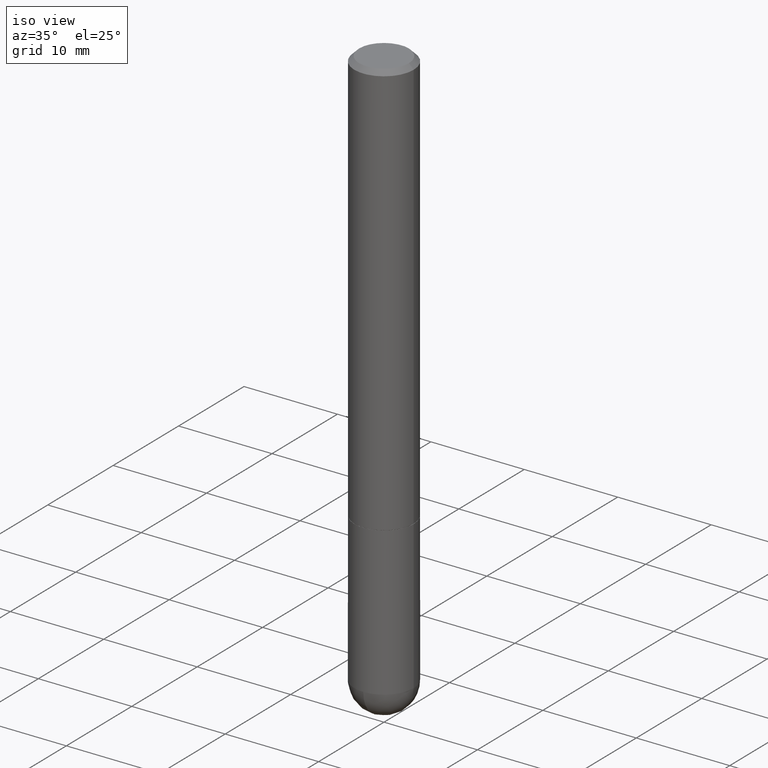
[diagram: clean part render]
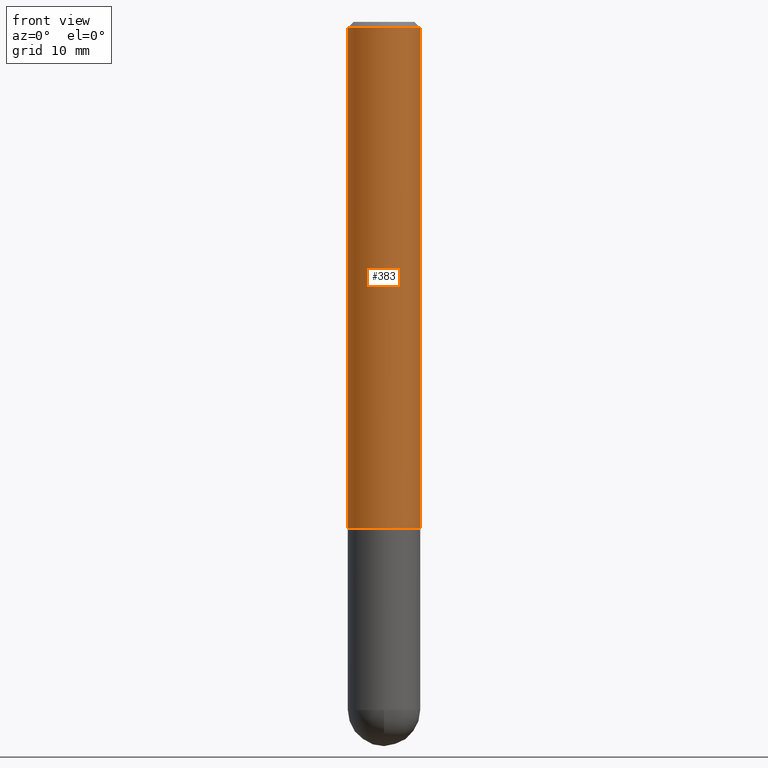
[diagram: tour spotlight — one face highlighted and labeled with its STEP entity id]
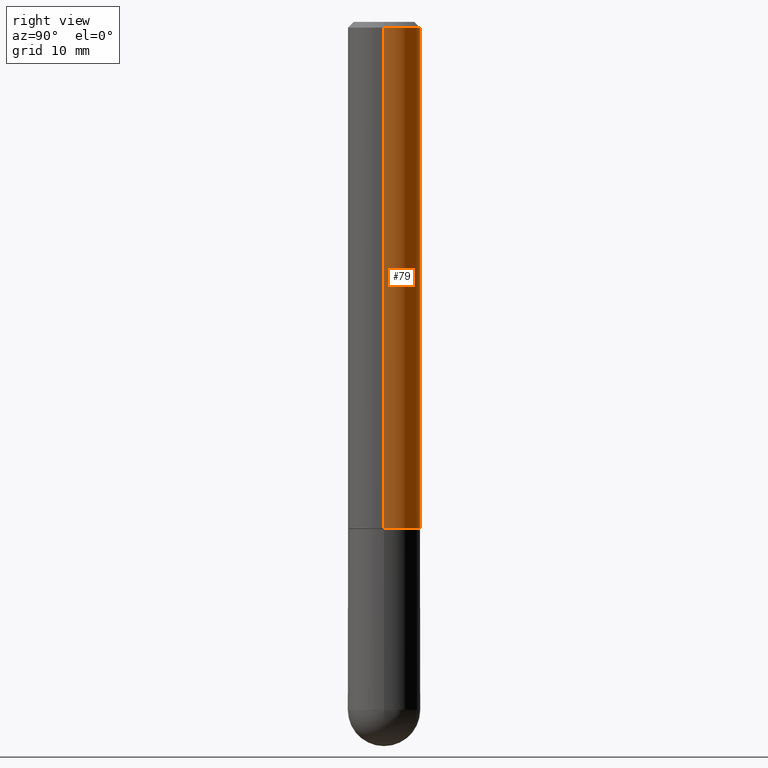
[diagram: tour spotlight — one face highlighted and labeled with its STEP entity id]
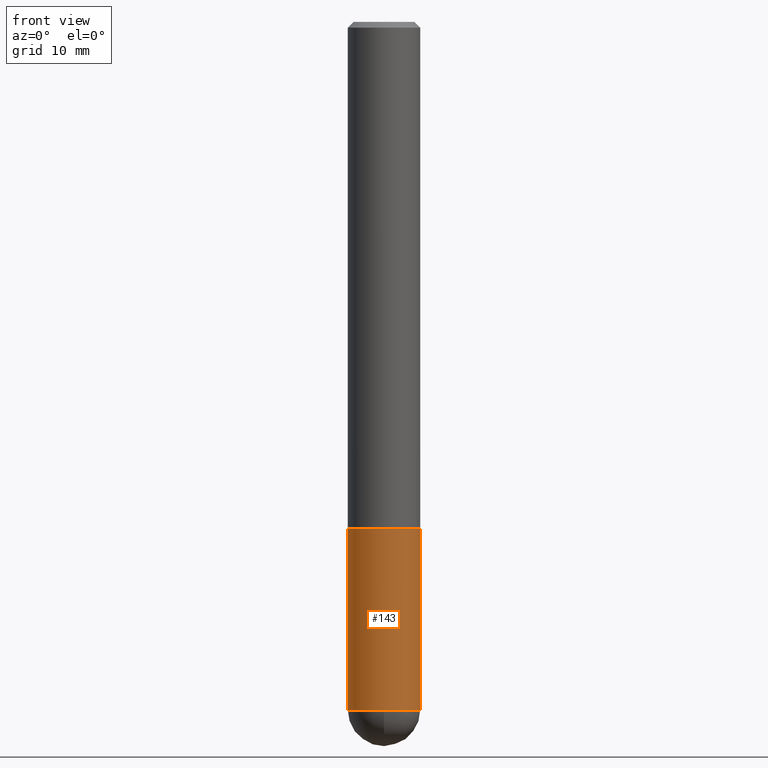
[diagram: tour spotlight — one face highlighted and labeled with its STEP entity id]
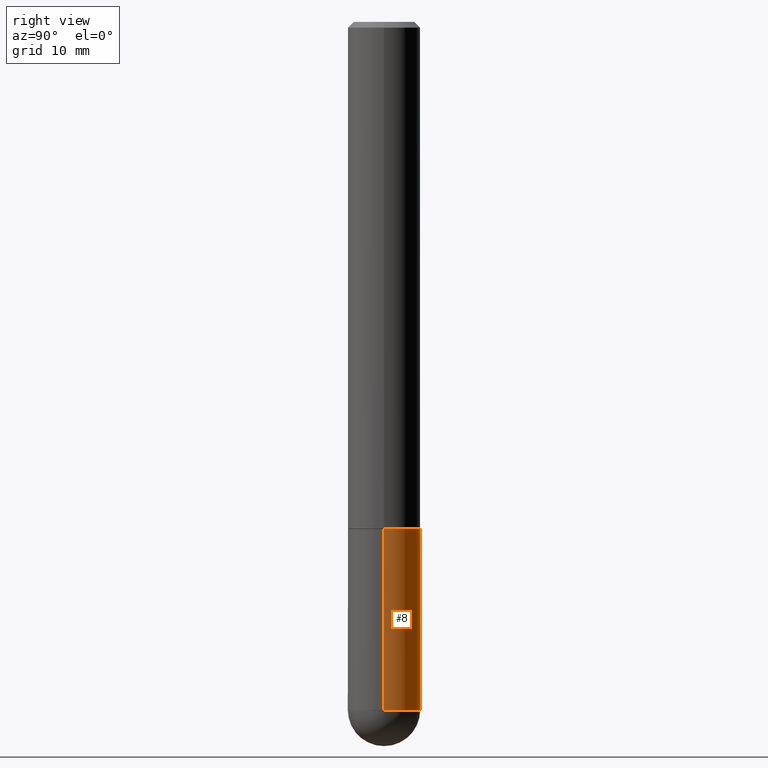
[diagram: tour spotlight — one face highlighted and labeled with its STEP entity id]
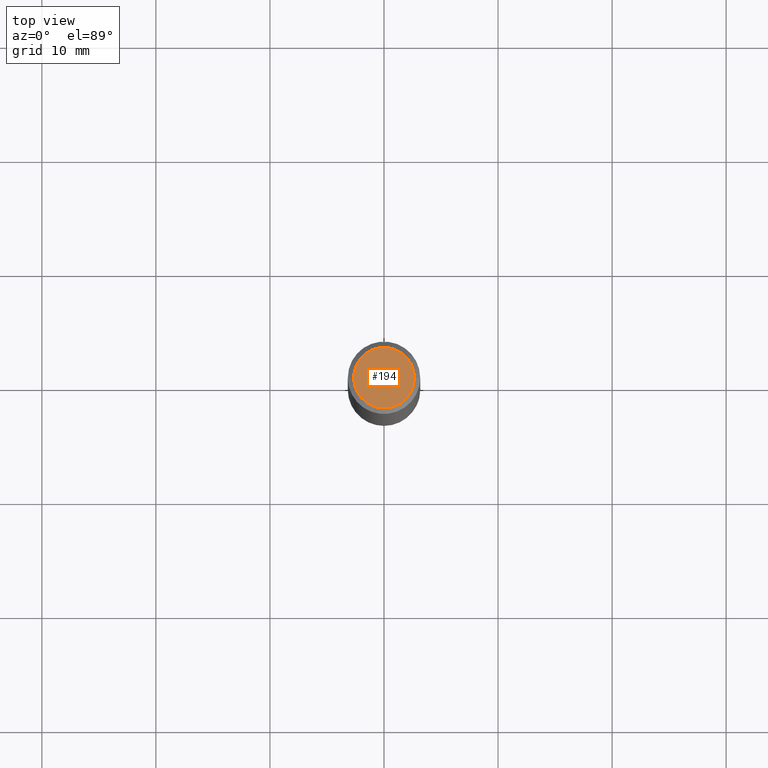
[diagram: tour spotlight — one face highlighted and labeled with its STEP entity id]
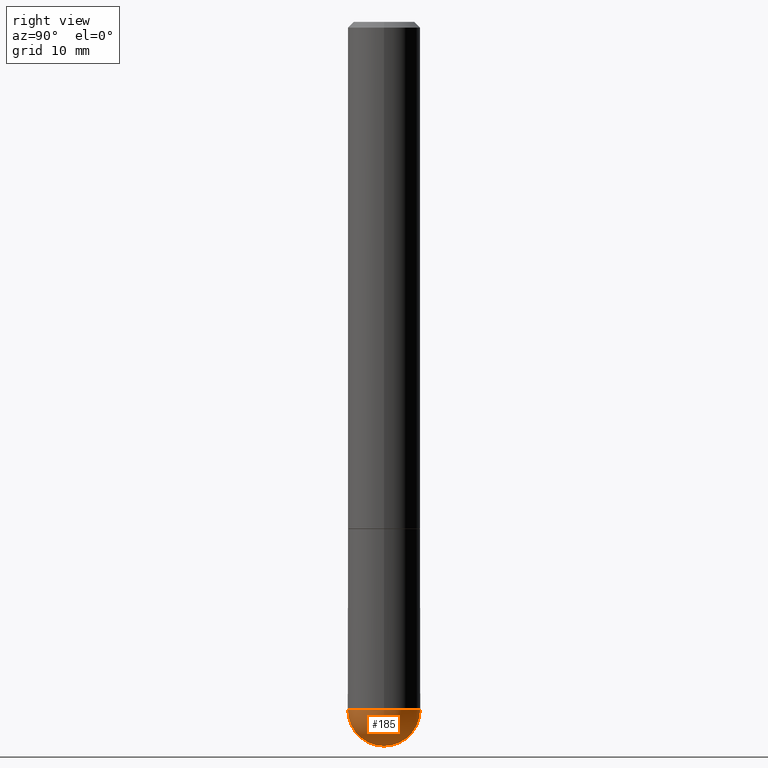
[diagram: tour spotlight — one face highlighted and labeled with its STEP entity id]
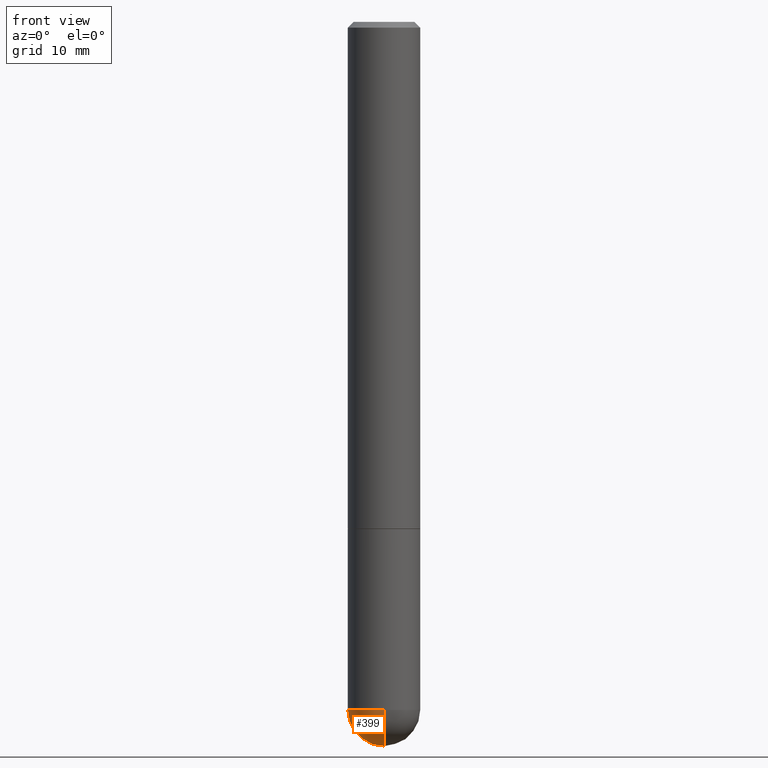
[diagram: tour spotlight — one face highlighted and labeled with its STEP entity id]
A machine part: a face-by-face anatomy tour. The part has 13 B-rep faces; the first image is the clean iso view, then the 7 largest visible faces are spotlighted one at a time (largest first), each with its STEP entity span.

Face 1 — front view, entity #383. In plain terms, the highlighted cylindrical surface (edge-blend (fillet) strip) has radius 3.175 mm, axis along (-0, 0, 1).
Definition (entity closure, byte-faithful):
#4 = LINE ( 'NONE', #391, #344 ) ;
#11 = DIRECTION ( 'NONE',  ( 1.000000000000000000, -6.982962677686264344E-15, 0.000000000000000000 ) ) ;
#64 = AXIS2_PLACEMENT_3D ( 'NONE', #357, #240, #82 ) ;
#80 = CYLINDRICAL_SURFACE ( 'NONE', #64, 0.1250000000000001388 ) ;
#82 = DIRECTION ( 'NONE',  ( 1.000000000000000000, -6.982962677686266711E-15, 4.876176775795935793E-29 ) ) ;
#94 = VECTOR ( 'NONE', #278, 39.37007874015748143 ) ;
#156 = DIRECTION ( 'NONE',  ( -2.445468806185136597E-29, 3.491481338843145583E-15, 1.000000000000000000 ) ) ;
#162 = ORIENTED_EDGE ( 'NONE', *, *, #283, .F. ) ;
#167 = EDGE_CURVE ( 'NONE', #211, #398, #169, .T. ) ;
#169 = LINE ( 'NONE', #309, #94 ) ;
#170 = EDGE_CURVE ( 'NONE', #234, #249, #4, .T. ) ;
#197 = AXIS2_PLACEMENT_3D ( 'NONE', #334, #264, #342 ) ;
#211 = VERTEX_POINT ( 'NONE', #233 ) ;
#221 = ORIENTED_EDGE ( 'NONE', *, *, #170, .F. ) ;
#233 = CARTESIAN_POINT ( 'NONE',  ( 0.1250000000000002498, -6.979471196347446580E-15, -1.749000000000000110 ) ) ;
#234 = VERTEX_POINT ( 'NONE', #287 ) ;
#237 = DIRECTION ( 'NONE',  ( -2.445468806185136877E-29, 3.491481338843145188E-15, 1.000000000000000000 ) ) ;
#240 = DIRECTION ( 'NONE',  ( -2.445468806185136597E-29, 3.491481338843145583E-15, 1.000000000000000000 ) ) ;
#244 = FACE_OUTER_BOUND ( 'NONE', #276, .T. ) ;
#249 = VERTEX_POINT ( 'NONE', #300 ) ;
#261 = CARTESIAN_POINT ( 'NONE',  ( 4.277124942017804562E-29, -6.106600861636661664E-15, -1.749000000000000110 ) ) ;
#264 = DIRECTION ( 'NONE',  ( -2.445468806185136597E-29, 3.491481338843145583E-15, 1.000000000000000000 ) ) ;
#276 = EDGE_LOOP ( 'NONE', ( #221, #285, #358, #162 ) ) ;
#278 = DIRECTION ( 'NONE',  ( -2.445468806185136877E-29, 3.491481338843145188E-15, 1.000000000000000000 ) ) ;
#283 = EDGE_CURVE ( 'NONE', #249, #398, #403, .T. ) ;
#285 = ORIENTED_EDGE ( 'NONE', *, *, #302, .T. ) ;
#287 = CARTESIAN_POINT ( 'NONE',  ( -0.1250000000000002498, -2.200036824506632516E-15, -1.749000000000000110 ) ) ;
#300 = CARTESIAN_POINT ( 'NONE',  ( -0.1250000000000000278, 8.030407079339204351E-16, -0.02000000000000007674 ) ) ;
#302 = EDGE_CURVE ( 'NONE', #234, #211, #359, .T. ) ;
#309 = CARTESIAN_POINT ( 'NONE',  ( 0.1250000000000001388, -8.728703347107843249E-16, 6.095220969744926748E-30 ) ) ;
#312 = AXIS2_PLACEMENT_3D ( 'NONE', #261, #156, #11 ) ;
#313 = CARTESIAN_POINT ( 'NONE',  ( 0.1250000000000000278, -9.273918764983049407E-16, -0.02000000000000007674 ) ) ;
#334 = CARTESIAN_POINT ( 'NONE',  ( 4.890937612370292426E-31, -6.982962677686317493E-17, -0.02000000000000007674 ) ) ;
#342 = DIRECTION ( 'NONE',  ( 1.000000000000000000, -6.982962677686267499E-15, 0.000000000000000000 ) ) ;
#344 = VECTOR ( 'NONE', #237, 39.37007874015748143 ) ;
#357 = CARTESIAN_POINT ( 'NONE',  ( 0.000000000000000000, 0.000000000000000000, 0.000000000000000000 ) ) ;
#358 = ORIENTED_EDGE ( 'NONE', *, *, #167, .T. ) ;
#359 = CIRCLE ( 'NONE', #312, 0.1250000000000002498 ) ;
#383 = ADVANCED_FACE ( 'NONE', ( #244 ), #80, .T. ) ;
#391 = CARTESIAN_POINT ( 'NONE',  ( -0.1250000000000001388, 8.881784197001262184E-16, -6.148668862818638533E-30 ) ) ;
#398 = VERTEX_POINT ( 'NONE', #313 ) ;
#403 = CIRCLE ( 'NONE', #197, 0.1250000000000000278 ) ;

Face 2 — right view, entity #79. In plain terms, the highlighted cylindrical surface (edge-blend (fillet) strip) has radius 3.175 mm, axis along (-0, 0, 1).
Definition (entity closure, byte-faithful):
#4 = LINE ( 'NONE', #391, #344 ) ;
#16 = EDGE_CURVE ( 'NONE', #398, #249, #200, .T. ) ;
#28 = AXIS2_PLACEMENT_3D ( 'NONE', #43, #333, #122 ) ;
#32 = EDGE_CURVE ( 'NONE', #211, #234, #395, .T. ) ;
#38 = DIRECTION ( 'NONE',  ( 1.000000000000000000, -6.982962677686267499E-15, 0.000000000000000000 ) ) ;
#43 = CARTESIAN_POINT ( 'NONE',  ( 0.000000000000000000, 0.000000000000000000, 0.000000000000000000 ) ) ;
#59 = EDGE_LOOP ( 'NONE', ( #256, #269, #250, #284 ) ) ;
#67 = DIRECTION ( 'NONE',  ( -2.445468806185136597E-29, 3.491481338843145583E-15, 1.000000000000000000 ) ) ;
#79 = ADVANCED_FACE ( 'NONE', ( #295 ), #220, .T. ) ;
#94 = VECTOR ( 'NONE', #278, 39.37007874015748143 ) ;
#122 = DIRECTION ( 'NONE',  ( 1.000000000000000000, -6.982962677686266711E-15, 4.876176775795935793E-29 ) ) ;
#159 = DIRECTION ( 'NONE',  ( -2.445468806185136597E-29, 3.491481338843145583E-15, 1.000000000000000000 ) ) ;
#167 = EDGE_CURVE ( 'NONE', #211, #398, #169, .T. ) ;
#168 = AXIS2_PLACEMENT_3D ( 'NONE', #265, #159, #407 ) ;
#169 = LINE ( 'NONE', #309, #94 ) ;
#170 = EDGE_CURVE ( 'NONE', #234, #249, #4, .T. ) ;
#200 = CIRCLE ( 'NONE', #368, 0.1250000000000000278 ) ;
#211 = VERTEX_POINT ( 'NONE', #233 ) ;
#220 = CYLINDRICAL_SURFACE ( 'NONE', #28, 0.1250000000000001388 ) ;
#233 = CARTESIAN_POINT ( 'NONE',  ( 0.1250000000000002498, -6.979471196347446580E-15, -1.749000000000000110 ) ) ;
#234 = VERTEX_POINT ( 'NONE', #287 ) ;
#237 = DIRECTION ( 'NONE',  ( -2.445468806185136877E-29, 3.491481338843145188E-15, 1.000000000000000000 ) ) ;
#249 = VERTEX_POINT ( 'NONE', #300 ) ;
#250 = ORIENTED_EDGE ( 'NONE', *, *, #16, .F. ) ;
#256 = ORIENTED_EDGE ( 'NONE', *, *, #32, .T. ) ;
#265 = CARTESIAN_POINT ( 'NONE',  ( 4.277124942017804562E-29, -6.106600861636661664E-15, -1.749000000000000110 ) ) ;
#269 = ORIENTED_EDGE ( 'NONE', *, *, #170, .T. ) ;
#278 = DIRECTION ( 'NONE',  ( -2.445468806185136877E-29, 3.491481338843145188E-15, 1.000000000000000000 ) ) ;
#284 = ORIENTED_EDGE ( 'NONE', *, *, #167, .F. ) ;
#287 = CARTESIAN_POINT ( 'NONE',  ( -0.1250000000000002498, -2.200036824506632516E-15, -1.749000000000000110 ) ) ;
#295 = FACE_OUTER_BOUND ( 'NONE', #59, .T. ) ;
#300 = CARTESIAN_POINT ( 'NONE',  ( -0.1250000000000000278, 8.030407079339204351E-16, -0.02000000000000007674 ) ) ;
#309 = CARTESIAN_POINT ( 'NONE',  ( 0.1250000000000001388, -8.728703347107843249E-16, 6.095220969744926748E-30 ) ) ;
#313 = CARTESIAN_POINT ( 'NONE',  ( 0.1250000000000000278, -9.273918764983049407E-16, -0.02000000000000007674 ) ) ;
#333 = DIRECTION ( 'NONE',  ( -2.445468806185136597E-29, 3.491481338843145583E-15, 1.000000000000000000 ) ) ;
#344 = VECTOR ( 'NONE', #237, 39.37007874015748143 ) ;
#368 = AXIS2_PLACEMENT_3D ( 'NONE', #409, #67, #38 ) ;
#391 = CARTESIAN_POINT ( 'NONE',  ( -0.1250000000000001388, 8.881784197001262184E-16, -6.148668862818638533E-30 ) ) ;
#395 = CIRCLE ( 'NONE', #168, 0.1250000000000002498 ) ;
#398 = VERTEX_POINT ( 'NONE', #313 ) ;
#407 = DIRECTION ( 'NONE',  ( 1.000000000000000000, -6.982962677686264344E-15, 0.000000000000000000 ) ) ;
#409 = CARTESIAN_POINT ( 'NONE',  ( 4.890937612370292426E-31, -6.982962677686317493E-17, -0.02000000000000007674 ) ) ;

Face 3 — front view, entity #143. In plain terms, the highlighted cylindrical surface (edge-blend (fillet) strip) has radius 3.175 mm, axis along (-0, 0, 1).
Definition (entity closure, byte-faithful):
#1 = VERTEX_POINT ( 'NONE', #9 ) ;
#9 = CARTESIAN_POINT ( 'NONE',  ( 0.1250000000000000000, -6.982962677686288010E-15, -1.750000000000000222 ) ) ;
#21 = DIRECTION ( 'NONE',  ( -2.445468806185136597E-29, 3.491481338843145583E-15, 1.000000000000000000 ) ) ;
#26 = EDGE_CURVE ( 'NONE', #394, #356, #148, .T. ) ;
#30 = VECTOR ( 'NONE', #177, 39.37007874015748143 ) ;
#46 = CARTESIAN_POINT ( 'NONE',  ( 0.000000000000000000, 0.000000000000000000, 0.000000000000000000 ) ) ;
#48 = DIRECTION ( 'NONE',  ( -2.445468806185136597E-29, 3.491481338843145583E-15, 1.000000000000000000 ) ) ;
#50 = AXIS2_PLACEMENT_3D ( 'NONE', #46, #346, #53 ) ;
#53 = DIRECTION ( 'NONE',  ( 1.000000000000000000, -6.982962677686266711E-15, 4.876176775795935793E-29 ) ) ;
#63 = ORIENTED_EDGE ( 'NONE', *, *, #340, .T. ) ;
#85 = EDGE_CURVE ( 'NONE', #394, #146, #260, .T. ) ;
#96 = DIRECTION ( 'NONE',  ( -2.445468806185136877E-29, 3.491481338843145188E-15, 1.000000000000000000 ) ) ;
#100 = CIRCLE ( 'NONE', #350, 0.1250000000000000000 ) ;
#107 = AXIS2_PLACEMENT_3D ( 'NONE', #196, #21, #378 ) ;
#114 = ORIENTED_EDGE ( 'NONE', *, *, #85, .F. ) ;
#127 = CARTESIAN_POINT ( 'NONE',  ( 5.807988414689700538E-29, -8.292268179752471696E-15, -2.375000000000000000 ) ) ;
#131 = DIRECTION ( 'NONE',  ( 1.000000000000000000, -6.982962677686270655E-15, 0.000000000000000000 ) ) ;
#136 = ORIENTED_EDGE ( 'NONE', *, *, #26, .T. ) ;
#137 = CARTESIAN_POINT ( 'NONE',  ( -0.1250000000000000000, -6.313001841663863345E-15, -1.750000000000000222 ) ) ;
#141 = DIRECTION ( 'NONE',  ( 1.000000000000000000, -6.982962677686270655E-15, 0.000000000000000000 ) ) ;
#143 = ADVANCED_FACE ( 'NONE', ( #348 ), #311, .T. ) ;
#146 = VERTEX_POINT ( 'NONE', #137 ) ;
#148 = CIRCLE ( 'NONE', #257, 0.1250000000000000000 ) ;
#176 = ORIENTED_EDGE ( 'NONE', *, *, #178, .T. ) ;
#177 = DIRECTION ( 'NONE',  ( -2.445468806185136877E-29, 3.491481338843145188E-15, 1.000000000000000000 ) ) ;
#178 = EDGE_CURVE ( 'NONE', #356, #393, #100, .T. ) ;
#188 = CARTESIAN_POINT ( 'NONE',  ( -0.1250000000000000000, 8.881784197001252323E-16, -6.148668862818632227E-30 ) ) ;
#193 = ORIENTED_EDGE ( 'NONE', *, *, #277, .F. ) ;
#196 = CARTESIAN_POINT ( 'NONE',  ( 4.279570410823989044E-29, -6.110092342975505460E-15, -1.750000000000000222 ) ) ;
#214 = VECTOR ( 'NONE', #96, 39.37007874015748143 ) ;
#227 = CARTESIAN_POINT ( 'NONE',  ( 0.1250000000000000000, -8.728703347107833388E-16, 6.095220969744919741E-30 ) ) ;
#236 = CARTESIAN_POINT ( 'NONE',  ( 5.807988414689700538E-29, -8.292268179752471696E-15, -2.375000000000000000 ) ) ;
#257 = AXIS2_PLACEMENT_3D ( 'NONE', #127, #263, #131 ) ;
#260 = LINE ( 'NONE', #188, #214 ) ;
#263 = DIRECTION ( 'NONE',  ( -2.445468806185136597E-29, 3.491481338843145583E-15, 1.000000000000000000 ) ) ;
#272 = CIRCLE ( 'NONE', #107, 0.1250000000000000000 ) ;
#277 = EDGE_CURVE ( 'NONE', #146, #1, #272, .T. ) ;
#311 = CYLINDRICAL_SURFACE ( 'NONE', #50, 0.1250000000000000000 ) ;
#318 = CARTESIAN_POINT ( 'NONE',  ( -0.1250000000000000000, -6.313001841663864134E-15, -2.375000000000000000 ) ) ;
#332 = EDGE_LOOP ( 'NONE', ( #114, #136, #176, #63, #193 ) ) ;
#340 = EDGE_CURVE ( 'NONE', #393, #1, #401, .T. ) ;
#346 = DIRECTION ( 'NONE',  ( -2.445468806185136597E-29, 3.491481338843145583E-15, 1.000000000000000000 ) ) ;
#348 = FACE_OUTER_BOUND ( 'NONE', #332, .T. ) ;
#350 = AXIS2_PLACEMENT_3D ( 'NONE', #236, #48, #141 ) ;
#353 = CARTESIAN_POINT ( 'NONE',  ( 0.1250000000000000000, -8.074050596074771916E-15, -2.375000000000000000 ) ) ;
#356 = VERTEX_POINT ( 'NONE', #360 ) ;
#360 = CARTESIAN_POINT ( 'NONE',  ( -8.881784197000694204E-16, -0.1250000000000086320, -2.374999999999999556 ) ) ;
#378 = DIRECTION ( 'NONE',  ( 1.000000000000000000, -6.982962677686262766E-15, 0.000000000000000000 ) ) ;
#393 = VERTEX_POINT ( 'NONE', #353 ) ;
#394 = VERTEX_POINT ( 'NONE', #318 ) ;
#401 = LINE ( 'NONE', #227, #30 ) ;

Face 4 — right view, entity #8. In plain terms, the highlighted cylindrical surface (edge-blend (fillet) strip) has radius 3.175 mm, axis along (-0, 0, 1).
Definition (entity closure, byte-faithful):
#1 = VERTEX_POINT ( 'NONE', #9 ) ;
#7 = ORIENTED_EDGE ( 'NONE', *, *, #126, .T. ) ;
#8 = ADVANCED_FACE ( 'NONE', ( #128 ), #335, .T. ) ;
#9 = CARTESIAN_POINT ( 'NONE',  ( 0.1250000000000000000, -6.982962677686288010E-15, -1.750000000000000222 ) ) ;
#12 = ORIENTED_EDGE ( 'NONE', *, *, #340, .F. ) ;
#30 = VECTOR ( 'NONE', #177, 39.37007874015748143 ) ;
#39 = CIRCLE ( 'NONE', #271, 0.1250000000000000000 ) ;
#47 = DIRECTION ( 'NONE',  ( -2.445468806185136597E-29, 3.491481338843145583E-15, 1.000000000000000000 ) ) ;
#51 = AXIS2_PLACEMENT_3D ( 'NONE', #52, #47, #308 ) ;
#52 = CARTESIAN_POINT ( 'NONE',  ( 5.807988414689700538E-29, -8.292268179752471696E-15, -2.375000000000000000 ) ) ;
#75 = DIRECTION ( 'NONE',  ( -2.445468806185136597E-29, 3.491481338843145583E-15, 1.000000000000000000 ) ) ;
#85 = EDGE_CURVE ( 'NONE', #394, #146, #260, .T. ) ;
#96 = DIRECTION ( 'NONE',  ( -2.445468806185136877E-29, 3.491481338843145188E-15, 1.000000000000000000 ) ) ;
#126 = EDGE_CURVE ( 'NONE', #393, #142, #39, .T. ) ;
#128 = FACE_OUTER_BOUND ( 'NONE', #144, .T. ) ;
#134 = AXIS2_PLACEMENT_3D ( 'NONE', #299, #337, #166 ) ;
#137 = CARTESIAN_POINT ( 'NONE',  ( -0.1250000000000000000, -6.313001841663863345E-15, -1.750000000000000222 ) ) ;
#142 = VERTEX_POINT ( 'NONE', #387 ) ;
#144 = EDGE_LOOP ( 'NONE', ( #155, #281, #243, #12, #7 ) ) ;
#146 = VERTEX_POINT ( 'NONE', #137 ) ;
#155 = ORIENTED_EDGE ( 'NONE', *, *, #209, .T. ) ;
#166 = DIRECTION ( 'NONE',  ( 1.000000000000000000, -6.982962677686266711E-15, 4.876176775795935793E-29 ) ) ;
#177 = DIRECTION ( 'NONE',  ( -2.445468806185136877E-29, 3.491481338843145188E-15, 1.000000000000000000 ) ) ;
#182 = AXIS2_PLACEMENT_3D ( 'NONE', #320, #326, #384 ) ;
#188 = CARTESIAN_POINT ( 'NONE',  ( -0.1250000000000000000, 8.881784197001252323E-16, -6.148668862818632227E-30 ) ) ;
#199 = CARTESIAN_POINT ( 'NONE',  ( 5.807988414689700538E-29, -8.292268179752471696E-15, -2.375000000000000000 ) ) ;
#209 = EDGE_CURVE ( 'NONE', #142, #394, #248, .T. ) ;
#214 = VECTOR ( 'NONE', #96, 39.37007874015748143 ) ;
#227 = CARTESIAN_POINT ( 'NONE',  ( 0.1250000000000000000, -8.728703347107833388E-16, 6.095220969744919741E-30 ) ) ;
#243 = ORIENTED_EDGE ( 'NONE', *, *, #364, .F. ) ;
#248 = CIRCLE ( 'NONE', #51, 0.1250000000000000000 ) ;
#260 = LINE ( 'NONE', #188, #214 ) ;
#271 = AXIS2_PLACEMENT_3D ( 'NONE', #199, #75, #351 ) ;
#281 = ORIENTED_EDGE ( 'NONE', *, *, #85, .T. ) ;
#299 = CARTESIAN_POINT ( 'NONE',  ( 0.000000000000000000, 0.000000000000000000, 0.000000000000000000 ) ) ;
#308 = DIRECTION ( 'NONE',  ( 1.000000000000000000, -6.982962677686270655E-15, 0.000000000000000000 ) ) ;
#318 = CARTESIAN_POINT ( 'NONE',  ( -0.1250000000000000000, -6.313001841663864134E-15, -2.375000000000000000 ) ) ;
#320 = CARTESIAN_POINT ( 'NONE',  ( 4.279570410823989044E-29, -6.110092342975505460E-15, -1.750000000000000222 ) ) ;
#326 = DIRECTION ( 'NONE',  ( -2.445468806185136597E-29, 3.491481338843145583E-15, 1.000000000000000000 ) ) ;
#335 = CYLINDRICAL_SURFACE ( 'NONE', #134, 0.1250000000000000000 ) ;
#337 = DIRECTION ( 'NONE',  ( -2.445468806185136597E-29, 3.491481338843145583E-15, 1.000000000000000000 ) ) ;
#340 = EDGE_CURVE ( 'NONE', #393, #1, #401, .T. ) ;
#351 = DIRECTION ( 'NONE',  ( 1.000000000000000000, -6.982962677686270655E-15, 0.000000000000000000 ) ) ;
#353 = CARTESIAN_POINT ( 'NONE',  ( 0.1250000000000000000, -8.074050596074771916E-15, -2.375000000000000000 ) ) ;
#364 = EDGE_CURVE ( 'NONE', #1, #146, #396, .T. ) ;
#384 = DIRECTION ( 'NONE',  ( 1.000000000000000000, -6.982962677686262766E-15, 0.000000000000000000 ) ) ;
#387 = CARTESIAN_POINT ( 'NONE',  ( 8.728703347108403340E-16, 0.1249999999999915623, -2.375000000000000888 ) ) ;
#393 = VERTEX_POINT ( 'NONE', #353 ) ;
#394 = VERTEX_POINT ( 'NONE', #318 ) ;
#396 = CIRCLE ( 'NONE', #182, 0.1250000000000000000 ) ;
#401 = LINE ( 'NONE', #227, #30 ) ;

Face 5 — top view, entity #194. In plain terms, the highlighted planar face has unit normal (0, -0, -1).
Definition (entity closure, byte-faithful):
#3 = EDGE_CURVE ( 'NONE', #33, #204, #329, .T. ) ;
#31 = ORIENTED_EDGE ( 'NONE', *, *, #3, .T. ) ;
#33 = VERTEX_POINT ( 'NONE', #102 ) ;
#42 = DIRECTION ( 'NONE',  ( 2.438088387897960049E-29, -3.491481338843145188E-15, -1.000000000000000000 ) ) ;
#70 = PLANE ( 'NONE',  #381 ) ;
#77 = CARTESIAN_POINT ( 'NONE',  ( 0.1050000000000001765, -8.238720831321587491E-16, -1.835460370743122338E-16 ) ) ;
#81 = CIRCLE ( 'NONE', #389, 0.1050000000000001765 ) ;
#84 = ORIENTED_EDGE ( 'NONE', *, *, #349, .T. ) ;
#99 = FACE_OUTER_BOUND ( 'NONE', #175, .T. ) ;
#102 = CARTESIAN_POINT ( 'NONE',  ( -0.1050000000000001765, 7.681258945454895748E-16, -1.835460370743229328E-16 ) ) ;
#120 = DIRECTION ( 'NONE',  ( -2.445468806185136597E-29, 3.491481338843145583E-15, 1.000000000000000000 ) ) ;
#133 = DIRECTION ( 'NONE',  ( -1.000000000000000000, 6.982962677686265922E-15, -4.876176775795935793E-29 ) ) ;
#152 = DIRECTION ( 'NONE',  ( 1.000000000000000000, -6.982962677686266711E-15, 4.881622206245854183E-29 ) ) ;
#163 = CARTESIAN_POINT ( 'NONE',  ( 4.488561081641444621E-45, -6.408475632635922878E-31, -1.835460370743176819E-16 ) ) ;
#175 = EDGE_LOOP ( 'NONE', ( #31, #84 ) ) ;
#192 = CARTESIAN_POINT ( 'NONE',  ( 7.332110811570591090E-16, 0.1050000000000001765, -4.583785591156897143E-16 ) ) ;
#194 = ADVANCED_FACE ( 'NONE', ( #99 ), #70, .F. ) ;
#204 = VERTEX_POINT ( 'NONE', #77 ) ;
#254 = DIRECTION ( 'NONE',  ( -2.445468806185136597E-29, 3.491481338843145583E-15, 1.000000000000000000 ) ) ;
#306 = AXIS2_PLACEMENT_3D ( 'NONE', #163, #120, #400 ) ;
#329 = CIRCLE ( 'NONE', #306, 0.1050000000000001765 ) ;
#349 = EDGE_CURVE ( 'NONE', #204, #33, #81, .T. ) ;
#367 = CARTESIAN_POINT ( 'NONE',  ( 4.488561081641444621E-45, -6.408475632635922878E-31, -1.835460370743176819E-16 ) ) ;
#381 = AXIS2_PLACEMENT_3D ( 'NONE', #192, #42, #133 ) ;
#389 = AXIS2_PLACEMENT_3D ( 'NONE', #367, #254, #152 ) ;
#400 = DIRECTION ( 'NONE',  ( 1.000000000000000000, -6.982962677686266711E-15, 4.881622206245854183E-29 ) ) ;

Face 6 — right view, entity #185. In plain terms, the highlighted spherical surface has radius 3.175 mm.
Definition (entity closure, byte-faithful):
#34 = ORIENTED_EDGE ( 'NONE', *, *, #178, .F. ) ;
#39 = CIRCLE ( 'NONE', #271, 0.1250000000000000000 ) ;
#48 = DIRECTION ( 'NONE',  ( -2.445468806185136597E-29, 3.491481338843145583E-15, 1.000000000000000000 ) ) ;
#75 = DIRECTION ( 'NONE',  ( -2.445468806185136597E-29, 3.491481338843145583E-15, 1.000000000000000000 ) ) ;
#86 = EDGE_LOOP ( 'NONE', ( #361, #288, #179, #34 ) ) ;
#97 = DIRECTION ( 'NONE',  ( 1.000000000000000000, -6.982962677686265922E-15, 4.883557194083112340E-29 ) ) ;
#100 = CIRCLE ( 'NONE', #350, 0.1250000000000000000 ) ;
#116 = VERTEX_POINT ( 'NONE', #229 ) ;
#119 = EDGE_CURVE ( 'NONE', #116, #356, #297, .T. ) ;
#123 = AXIS2_PLACEMENT_3D ( 'NONE', #290, #129, #376 ) ;
#126 = EDGE_CURVE ( 'NONE', #393, #142, #39, .T. ) ;
#129 = DIRECTION ( 'NONE',  ( -1.000000000000000000, 6.982962677686265922E-15, -4.883557194083112901E-29 ) ) ;
#138 = AXIS2_PLACEMENT_3D ( 'NONE', #339, #305, #273 ) ;
#141 = DIRECTION ( 'NONE',  ( 1.000000000000000000, -6.982962677686270655E-15, 0.000000000000000000 ) ) ;
#142 = VERTEX_POINT ( 'NONE', #387 ) ;
#164 = AXIS2_PLACEMENT_3D ( 'NONE', #373, #97, #303 ) ;
#178 = EDGE_CURVE ( 'NONE', #356, #393, #100, .T. ) ;
#179 = ORIENTED_EDGE ( 'NONE', *, *, #126, .F. ) ;
#185 = ADVANCED_FACE ( 'NONE', ( #274 ), #392, .T. ) ;
#199 = CARTESIAN_POINT ( 'NONE',  ( 5.807988414689700538E-29, -8.292268179752471696E-15, -2.375000000000000000 ) ) ;
#229 = CARTESIAN_POINT ( 'NONE',  ( 5.787897026856327965E-29, -9.195231672753244292E-15, -2.500000000000000444 ) ) ;
#236 = CARTESIAN_POINT ( 'NONE',  ( 5.807988414689700538E-29, -8.292268179752471696E-15, -2.375000000000000000 ) ) ;
#246 = EDGE_CURVE ( 'NONE', #116, #142, #298, .T. ) ;
#271 = AXIS2_PLACEMENT_3D ( 'NONE', #199, #75, #351 ) ;
#273 = DIRECTION ( 'NONE',  ( -7.105427357601000281E-15, -1.000000000000000000, 0.000000000000000000 ) ) ;
#274 = FACE_OUTER_BOUND ( 'NONE', #86, .T. ) ;
#288 = ORIENTED_EDGE ( 'NONE', *, *, #246, .T. ) ;
#290 = CARTESIAN_POINT ( 'NONE',  ( 5.476868636775814291E-29, -8.766450547892521992E-15, -2.375000000000000000 ) ) ;
#297 = CIRCLE ( 'NONE', #138, 0.1250000000000001943 ) ;
#298 = CIRCLE ( 'NONE', #164, 0.1250000000000001943 ) ;
#303 = DIRECTION ( 'NONE',  ( 6.982962677686265133E-15, 1.000000000000000000, 0.000000000000000000 ) ) ;
#305 = DIRECTION ( 'NONE',  ( -1.000000000000000000, 7.105427357601001070E-15, -4.926315508542082329E-29 ) ) ;
#339 = CARTESIAN_POINT ( 'NONE',  ( 5.476868636775814291E-29, -8.766450547892521992E-15, -2.375000000000000000 ) ) ;
#350 = AXIS2_PLACEMENT_3D ( 'NONE', #236, #48, #141 ) ;
#351 = DIRECTION ( 'NONE',  ( 1.000000000000000000, -6.982962677686270655E-15, 0.000000000000000000 ) ) ;
#353 = CARTESIAN_POINT ( 'NONE',  ( 0.1250000000000000000, -8.074050596074771916E-15, -2.375000000000000000 ) ) ;
#356 = VERTEX_POINT ( 'NONE', #360 ) ;
#360 = CARTESIAN_POINT ( 'NONE',  ( -8.881784197000694204E-16, -0.1250000000000086320, -2.374999999999999556 ) ) ;
#361 = ORIENTED_EDGE ( 'NONE', *, *, #119, .F. ) ;
#373 = CARTESIAN_POINT ( 'NONE',  ( 5.476868636775814291E-29, -8.766450547892521992E-15, -2.375000000000000000 ) ) ;
#376 = DIRECTION ( 'NONE',  ( 6.982962677686265922E-15, 1.000000000000000000, -4.370956789862814839E-15 ) ) ;
#387 = CARTESIAN_POINT ( 'NONE',  ( 8.728703347108403340E-16, 0.1249999999999915623, -2.375000000000000888 ) ) ;
#392 = SPHERICAL_SURFACE ( 'NONE', #123, 0.1250000000000001943 ) ;
#393 = VERTEX_POINT ( 'NONE', #353 ) ;

Face 7 — front view, entity #399. In plain terms, the highlighted spherical surface has radius 3.175 mm.
Definition (entity closure, byte-faithful):
#26 = EDGE_CURVE ( 'NONE', #394, #356, #148, .T. ) ;
#47 = DIRECTION ( 'NONE',  ( -2.445468806185136597E-29, 3.491481338843145583E-15, 1.000000000000000000 ) ) ;
#51 = AXIS2_PLACEMENT_3D ( 'NONE', #52, #47, #308 ) ;
#52 = CARTESIAN_POINT ( 'NONE',  ( 5.807988414689700538E-29, -8.292268179752471696E-15, -2.375000000000000000 ) ) ;
#58 = ORIENTED_EDGE ( 'NONE', *, *, #119, .T. ) ;
#78 = CARTESIAN_POINT ( 'NONE',  ( 5.476868636775814291E-29, -8.766450547892521992E-15, -2.375000000000000000 ) ) ;
#97 = DIRECTION ( 'NONE',  ( 1.000000000000000000, -6.982962677686265922E-15, 4.883557194083112340E-29 ) ) ;
#106 = ORIENTED_EDGE ( 'NONE', *, *, #246, .F. ) ;
#110 = FACE_OUTER_BOUND ( 'NONE', #118, .T. ) ;
#116 = VERTEX_POINT ( 'NONE', #229 ) ;
#118 = EDGE_LOOP ( 'NONE', ( #106, #58, #245, #218 ) ) ;
#119 = EDGE_CURVE ( 'NONE', #116, #356, #297, .T. ) ;
#127 = CARTESIAN_POINT ( 'NONE',  ( 5.807988414689700538E-29, -8.292268179752471696E-15, -2.375000000000000000 ) ) ;
#131 = DIRECTION ( 'NONE',  ( 1.000000000000000000, -6.982962677686270655E-15, 0.000000000000000000 ) ) ;
#138 = AXIS2_PLACEMENT_3D ( 'NONE', #339, #305, #273 ) ;
#142 = VERTEX_POINT ( 'NONE', #387 ) ;
#145 = DIRECTION ( 'NONE',  ( -1.000000000000000000, 6.982962677686265922E-15, -4.883557194083112901E-29 ) ) ;
#148 = CIRCLE ( 'NONE', #257, 0.1250000000000000000 ) ;
#164 = AXIS2_PLACEMENT_3D ( 'NONE', #373, #97, #303 ) ;
#209 = EDGE_CURVE ( 'NONE', #142, #394, #248, .T. ) ;
#216 = AXIS2_PLACEMENT_3D ( 'NONE', #78, #145, #253 ) ;
#218 = ORIENTED_EDGE ( 'NONE', *, *, #209, .F. ) ;
#229 = CARTESIAN_POINT ( 'NONE',  ( 5.787897026856327965E-29, -9.195231672753244292E-15, -2.500000000000000444 ) ) ;
#245 = ORIENTED_EDGE ( 'NONE', *, *, #26, .F. ) ;
#246 = EDGE_CURVE ( 'NONE', #116, #142, #298, .T. ) ;
#248 = CIRCLE ( 'NONE', #51, 0.1250000000000000000 ) ;
#253 = DIRECTION ( 'NONE',  ( 6.982962677686265922E-15, 1.000000000000000000, -4.370956789862814839E-15 ) ) ;
#257 = AXIS2_PLACEMENT_3D ( 'NONE', #127, #263, #131 ) ;
#263 = DIRECTION ( 'NONE',  ( -2.445468806185136597E-29, 3.491481338843145583E-15, 1.000000000000000000 ) ) ;
#273 = DIRECTION ( 'NONE',  ( -7.105427357601000281E-15, -1.000000000000000000, 0.000000000000000000 ) ) ;
#297 = CIRCLE ( 'NONE', #138, 0.1250000000000001943 ) ;
#298 = CIRCLE ( 'NONE', #164, 0.1250000000000001943 ) ;
#303 = DIRECTION ( 'NONE',  ( 6.982962677686265133E-15, 1.000000000000000000, 0.000000000000000000 ) ) ;
#305 = DIRECTION ( 'NONE',  ( -1.000000000000000000, 7.105427357601001070E-15, -4.926315508542082329E-29 ) ) ;
#308 = DIRECTION ( 'NONE',  ( 1.000000000000000000, -6.982962677686270655E-15, 0.000000000000000000 ) ) ;
#315 = SPHERICAL_SURFACE ( 'NONE', #216, 0.1250000000000001943 ) ;
#318 = CARTESIAN_POINT ( 'NONE',  ( -0.1250000000000000000, -6.313001841663864134E-15, -2.375000000000000000 ) ) ;
#339 = CARTESIAN_POINT ( 'NONE',  ( 5.476868636775814291E-29, -8.766450547892521992E-15, -2.375000000000000000 ) ) ;
#356 = VERTEX_POINT ( 'NONE', #360 ) ;
#360 = CARTESIAN_POINT ( 'NONE',  ( -8.881784197000694204E-16, -0.1250000000000086320, -2.374999999999999556 ) ) ;
#373 = CARTESIAN_POINT ( 'NONE',  ( 5.476868636775814291E-29, -8.766450547892521992E-15, -2.375000000000000000 ) ) ;
#387 = CARTESIAN_POINT ( 'NONE',  ( 8.728703347108403340E-16, 0.1249999999999915623, -2.375000000000000888 ) ) ;
#394 = VERTEX_POINT ( 'NONE', #318 ) ;
#399 = ADVANCED_FACE ( 'NONE', ( #110 ), #315, .T. ) ;